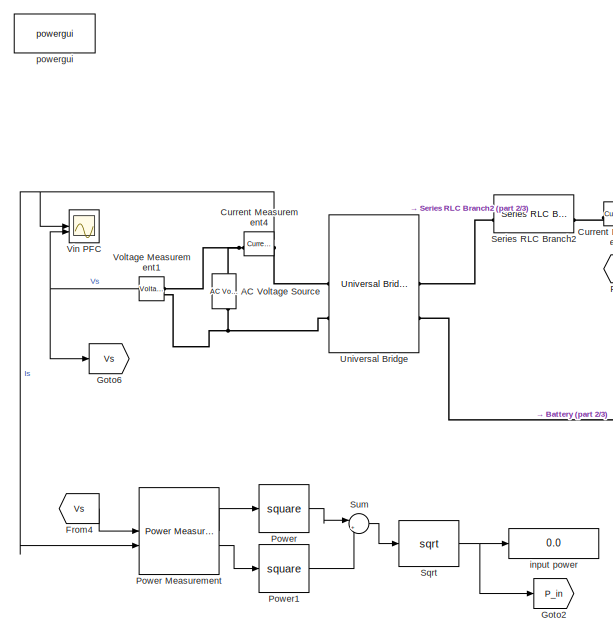
[diagram: root canvas - part 1/3, left side, full height]
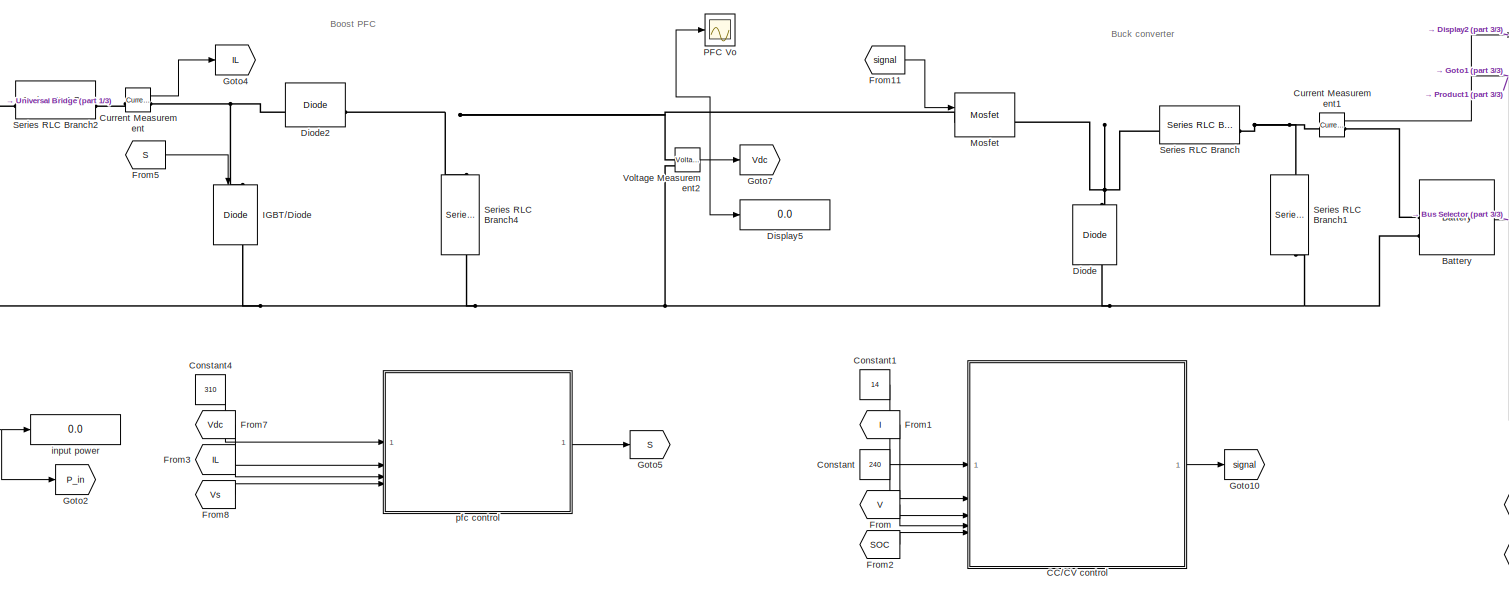
[diagram: root canvas - part 2/3, center side, full height]
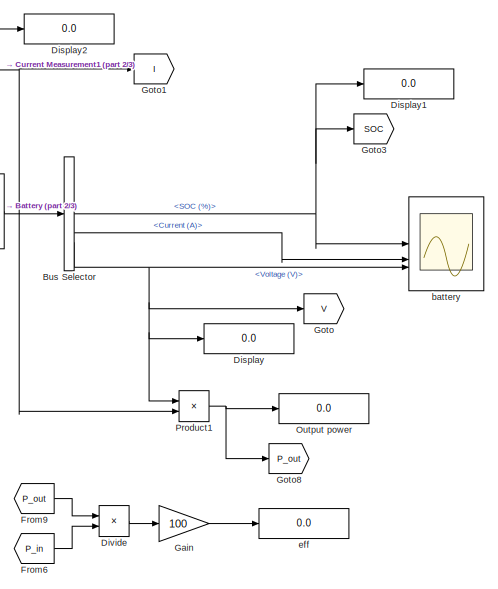
[diagram: root canvas - part 3/3, right side, full height]
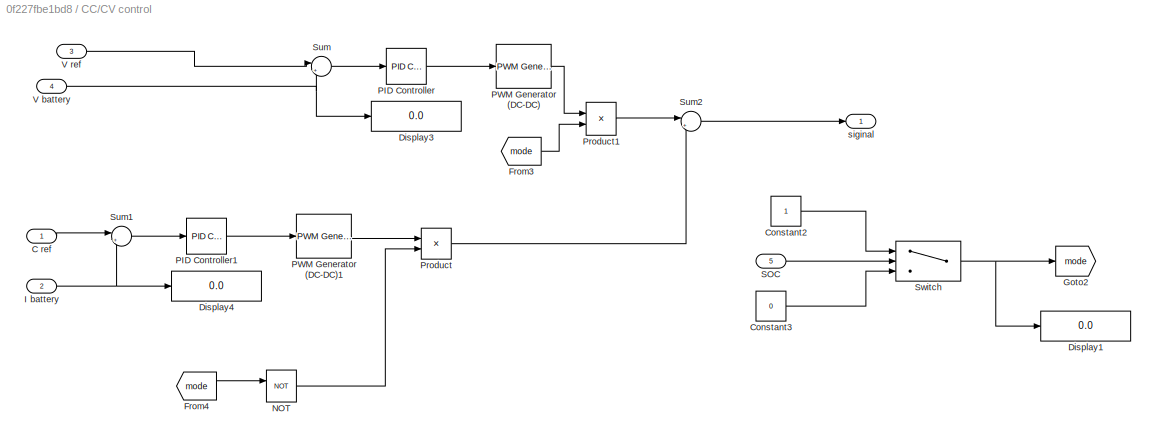
MODEL slx_0f227fbe1bd8
KIND model
CONFIG AbsTol = auto
CONFIG EnableMultiTasking = off
CONFIG FixedStep = auto
CONFIG MaxStep = 1e-5
CONFIG MinStep = auto
CONFIG RelTol = 1e-3
CONFIG SampleTimeConstraint = Unconstrained
CONFIG SolverName = ode23t
CONFIG StartTime = 0.0
CONFIG StopTime = 3
BLOCK [Reference] AC Voltage Source  REF=spsACVoltageSourceLib/AC Voltage Source
  LibrarySourceBlock = sps_lib/Sources/AC Voltage Source
  SourceBlock = spsACVoltageSourceLib/AC Voltage Source
  SourceType = AC Voltage Source
BLOCK [Reference] Battery  REF=spsBatteryLib/Battery
  LibrarySourceBlock = sps_lib/Sources/Battery
  SourceBlock = spsBatteryLib/Battery
  SourceType = Battery
BLOCK [BusSelector] Bus Selector
  OutputSignals = SOC (%),Current (A),Voltage (V)
BLOCK [SubSystem] CC//CV control
BLOCK [Inport] CC//CV control/C ref
BLOCK [Constant] CC//CV control/Constant2
BLOCK [Constant] CC//CV control/Constant3
  Value = 0
BLOCK [Display] CC//CV control/Display1
  Decimation = 1
BLOCK [Display] CC//CV control/Display3
  Decimation = 1
BLOCK [Display] CC//CV control/Display4
  Decimation = 1
BLOCK [From] CC//CV control/From3
  GotoTag = mode
BLOCK [From] CC//CV control/From4
  GotoTag = mode
BLOCK [Goto] CC//CV control/Goto2
  GotoTag = mode
BLOCK [Inport] CC//CV control/I battery
  Port = 2
BLOCK [Logic] CC//CV control/NOT
  AllPortsSameDT = off
  IconShape = distinctive
  Operator = NOT
  OutDataTypeStr = boolean
BLOCK [Reference] CC//CV control/PID Controller  REF=slpidlib/PID Controller
  LibrarySourceBlock = simulink/Continuous/PID Controller
  SourceBlock = slpidlib/PID Controller
  SourceType = PID 1dof
BLOCK [Reference] CC//CV control/PID Controller1  REF=slpidlib/PID Controller
  LibrarySourceBlock = simulink/Continuous/PID Controller
  SourceBlock = slpidlib/PID Controller
  SourceType = PID 1dof
BLOCK [Reference] CC//CV control/PWM Generator (DC-DC)  REF=spsPWMGeneratorDCDCLib/PWM Generator
(DC-DC)
  LibrarySourceBlock = sps_lib/Power Electronics/Power Electronics Control/PWM Generator\n(DC-DC)
  SourceBlock = spsPWMGeneratorDCDCLib/PWM Generator\n(DC-DC)
  SourceType = PWM Generator (DC-DC)
BLOCK [Reference] CC//CV control/PWM Generator (DC-DC)1  REF=spsPWMGeneratorDCDCLib/PWM Generator
(DC-DC)
  LibrarySourceBlock = sps_lib/Power Electronics/Power Electronics Control/PWM Generator\n(DC-DC)
  SourceBlock = spsPWMGeneratorDCDCLib/PWM Generator\n(DC-DC)
  SourceType = PWM Generator (DC-DC)
BLOCK [Product] CC//CV control/Product
BLOCK [Product] CC//CV control/Product1
BLOCK [Inport] CC//CV control/SOC
  Port = 5
BLOCK [Sum] CC//CV control/Sum
  Inputs = |+-
BLOCK [Sum] CC//CV control/Sum1
  Inputs = |+-
BLOCK [Sum] CC//CV control/Sum2
  Inputs = |++
BLOCK [Switch] CC//CV control/Switch
  Criteria = u2 > Threshold
  InputSameDT = off
  SaturateOnIntegerOverflow = off
  Threshold = 80
BLOCK [Inport] CC//CV control/V battery
  Port = 4
BLOCK [Inport] CC//CV control/V ref
  Port = 3
BLOCK [Outport] CC//CV control/siginal
BLOCK [Constant] Constant
  Value = 240
BLOCK [Constant] Constant1
  Value = 14
BLOCK [Constant] Constant4
  Value = 310
BLOCK [Reference] Current Measurement  REF=spsCurrentMeasurementLib/Current Measurement
  LibrarySourceBlock = sps_lib/Sensors and Measurements/Current Measurement
  SourceBlock = spsCurrentMeasurementLib/Current Measurement
  SourceType = Current Measurement
  UserDataPersistent = on
BLOCK [Reference] Current Measurement1  REF=spsCurrentMeasurementLib/Current Measurement
  LibrarySourceBlock = sps_lib/Sensors and Measurements/Current Measurement
  SourceBlock = spsCurrentMeasurementLib/Current Measurement
  SourceType = Current Measurement
  UserDataPersistent = on
BLOCK [Reference] Current Measurement4  REF=spsCurrentMeasurementLib/Current Measurement
  LibrarySourceBlock = sps_lib/Sensors and Measurements/Current Measurement
  SourceBlock = spsCurrentMeasurementLib/Current Measurement
  SourceType = Current Measurement
  UserDataPersistent = on
BLOCK [Reference] Diode  REF=spsDiodeLib/Diode
  LibrarySourceBlock = sps_lib/Power Electronics/Diode
  NameLocation = right
  SourceBlock = spsDiodeLib/Diode
  SourceType = Diode
BLOCK [Reference] Diode2  REF=spsDiodeLib/Diode
  LibrarySourceBlock = sps_lib/Power Electronics/Diode
  SourceBlock = spsDiodeLib/Diode
  SourceType = Diode
BLOCK [Display] Display
  Decimation = 1
BLOCK [Display] Display1
  Decimation = 1
BLOCK [Display] Display2
  Decimation = 1
BLOCK [Display] Display5
  Decimation = 1
BLOCK [Product] Divide
  Inputs = */
BLOCK [From] From
  GotoTag = V
BLOCK [From] From1
  GotoTag = I
BLOCK [From] From11
  GotoTag = signal
BLOCK [From] From2
  GotoTag = SOC
BLOCK [From] From3
  GotoTag = IL
BLOCK [From] From4
  GotoTag = Vs
BLOCK [From] From5
  GotoTag = S
BLOCK [From] From6
  GotoTag = P_in
BLOCK [From] From7
  GotoTag = Vdc
BLOCK [From] From8
  GotoTag = Vs
BLOCK [From] From9
  GotoTag = P_out
BLOCK [Gain] Gain
  Gain = 100
BLOCK [Goto] Goto
  GotoTag = V
BLOCK [Goto] Goto1
  GotoTag = I
BLOCK [Goto] Goto10
  GotoTag = signal
BLOCK [Goto] Goto2
  GotoTag = P_in
BLOCK [Goto] Goto3
  GotoTag = SOC
BLOCK [Goto] Goto4
  GotoTag = IL
BLOCK [Goto] Goto5
  GotoTag = S
BLOCK [Goto] Goto6
  GotoTag = Vs
BLOCK [Goto] Goto7
  GotoTag = Vdc
BLOCK [Goto] Goto8
  GotoTag = P_out
BLOCK [Reference] IGBT//Diode  REF=spsIGBTDiodeLib/IGBT//Diode
  LibrarySourceBlock = sps_lib/Power Electronics/IGBT//Diode
  NameLocation = left
  SourceBlock = spsIGBTDiodeLib/IGBT//Diode
  SourceType = IGBT/Diode
BLOCK [Reference] Mosfet  REF=spsMosfetLib/Mosfet
  LibrarySourceBlock = sps_lib/Power Electronics/Mosfet
  NameLocation = top
  SourceBlock = spsMosfetLib/Mosfet
  SourceType = Mosfet
BLOCK [Display] Output power
  Decimation = 1
BLOCK [Scope] PFC Vo
  Floating = off
  NumInputPorts = 1
  ScopeSpecificationString = Simulink.scopes.TimeScopeBlockCfg('CurrentConfiguration', extmgr.ConfigurationSet(extmgr.Configuration('Core','General UI',true,'FigureColor',[1 1 1]),extmgr.Configuration('Core','Source UI',true),extmgr.Configuration('Sources','WiredSimulink',true,'DataLoggingVariableName','ScopeData1'),extmgr.Configuration('Visuals','Time Domain',true,'SerializedDisplays',{struct('MinYLimReal','0','MaxYLimReal',...<+1560ch>
BLOCK [Math] Power
  Operator = square
BLOCK [Reference] Power Measurement  REF=eePowerMeasurement/Power
Measurement
  LibrarySourceBlock = ee_sl_lib/Measurements/Power\nMeasurement
  SourceBlock = eePowerMeasurement/Power\nMeasurement
  SourceType = Power Measurement
BLOCK [Math] Power1
  Operator = square
BLOCK [Product] Product1
BLOCK [Reference] Series RLC Branch  REF=spsSeriesRLCBranchLib/Series RLC Branch
  LibrarySourceBlock = sps_lib/Passives/Series RLC Branch
  NameLocation = top
  SourceBlock = spsSeriesRLCBranchLib/Series RLC Branch
  SourceType = Series RLC Branch
BLOCK [Reference] Series RLC Branch1  REF=spsSeriesRLCBranchLib/Series RLC Branch
  LibrarySourceBlock = sps_lib/Passives/Series RLC Branch
  NameLocation = left
  SourceBlock = spsSeriesRLCBranchLib/Series RLC Branch
  SourceType = Series RLC Branch
BLOCK [Reference] Series RLC Branch2  REF=spsSeriesRLCBranchLib/Series RLC Branch
  LibrarySourceBlock = sps_lib/Passives/Series RLC Branch
  SourceBlock = spsSeriesRLCBranchLib/Series RLC Branch
  SourceType = Series RLC Branch
BLOCK [Reference] Series RLC Branch4  REF=spsSeriesRLCBranchLib/Series RLC Branch
  LibrarySourceBlock = sps_lib/Passives/Series RLC Branch
  NameLocation = left
  SourceBlock = spsSeriesRLCBranchLib/Series RLC Branch
  SourceType = Series RLC Branch
BLOCK [Sqrt] Sqrt
BLOCK [Sum] Sum
  Inputs = |++
BLOCK [Reference] Universal Bridge  REF=spsUniversalBridgeLib/Universal Bridge
  LibrarySourceBlock = sps_lib/Power Electronics/Universal Bridge
  SourceBlock = spsUniversalBridgeLib/Universal Bridge
  SourceType = Universal Bridge
BLOCK [Scope] Vin PFC
  Floating = off
  NumInputPorts = 2
  ScopeSpecificationString = Simulink.scopes.TimeScopeBlockCfg('CurrentConfiguration', extmgr.ConfigurationSet(extmgr.Configuration('Core','General UI',true,'FigureColor',[1 1 1]),extmgr.Configuration('Core','Source UI',true),extmgr.Configuration('Sources','WiredSimulink',true,'DataLoggingVariableName','ScopeData2'),extmgr.Configuration('Visuals','Time Domain',true,'SerializedDisplays',{struct('MinYLimReal','-388.90873','MaxY...<+1733ch>
BLOCK [Reference] Voltage Measurement1  REF=spsVoltageMeasurementLib/Voltage Measurement
  LibrarySourceBlock = sps_lib/Sensors and Measurements/Voltage Measurement
  SourceBlock = spsVoltageMeasurementLib/Voltage Measurement
  SourceType = Voltage Measurement
  UserDataPersistent = on
BLOCK [Reference] Voltage Measurement2  REF=spsVoltageMeasurementLib/Voltage Measurement
  LibrarySourceBlock = sps_lib/Sensors and Measurements/Voltage Measurement
  SourceBlock = spsVoltageMeasurementLib/Voltage Measurement
  SourceType = Voltage Measurement
  UserDataPersistent = on
BLOCK [Scope] battery
  Floating = off
  NumInputPorts = 3
  ScopeSpecificationString = Simulink.scopes.TimeScopeBlockCfg('CurrentConfiguration', extmgr.ConfigurationSet(extmgr.Configuration('Core','General UI',true,'FigureColor',[1 1 1]),extmgr.Configuration('Core','Source UI',true),extmgr.Configuration('Sources','WiredSimulink',true,'DataLoggingVariableName','ScopeData3'),extmgr.Configuration('Visuals','Time Domain',true,'SerializedDisplays',{struct('MinYLimReal','79.98857','MaxYLi...<+3242ch>
BLOCK [Display] eff
  Decimation = 1
BLOCK [Display] input power
  Decimation = 1
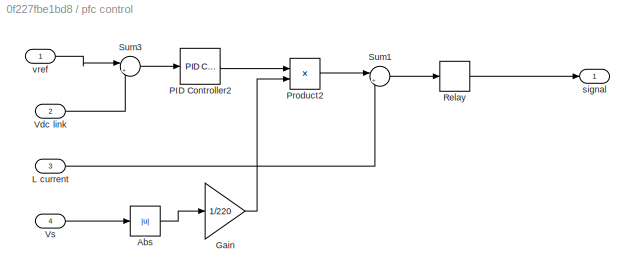
BLOCK [SubSystem] pfc control
BLOCK [Abs] pfc control/Abs
  SaturateOnIntegerOverflow = off
BLOCK [Gain] pfc control/Gain
  Gain = 1/220
BLOCK [Inport] pfc control/L current
  Port = 3
BLOCK [Reference] pfc control/PID Controller2  REF=slpidlib/PID Controller
  LibrarySourceBlock = simulink/Continuous/PID Controller
  SourceBlock = slpidlib/PID Controller
  SourceType = PID 1dof
BLOCK [Product] pfc control/Product2
BLOCK [Relay] pfc control/Relay
  OffSwitchValue = -0.001
  OnSwitchValue = 0.001
BLOCK [Sum] pfc control/Sum1
  Inputs = |+-
BLOCK [Sum] pfc control/Sum3
  Inputs = |+-
BLOCK [Inport] pfc control/Vdc link
  Port = 2
BLOCK [Inport] pfc control/Vs
  Port = 4
BLOCK [Outport] pfc control/signal
BLOCK [Inport] pfc control/vref
BLOCK [Reference] powergui  REF=spspowerguiLib/powergui
  Priority = 1
  SourceBlock = spspowerguiLib/powergui
  SourceType = PSB option menu block
ANNOTATION (root): Boost PFC
ANNOTATION (root): Buck converter
LINE Battery:1 -> Bus Selector:1
NET Bus Selector:1 -> Display1:1, Goto3:1, battery:1
LINE Bus Selector:2 -> battery:2
NET Bus Selector:3 -> Display:1, Goto:1, Product1:1, battery:3
LINE CC//CV control/C ref:1 -> CC//CV control/Sum1:1
LINE CC//CV control/Constant2:1 -> CC//CV control/Switch:1
LINE CC//CV control/Constant3:1 -> CC//CV control/Switch:3
LINE CC//CV control/From3:1 -> CC//CV control/Product1:2
LINE CC//CV control/From4:1 -> CC//CV control/NOT:1
NET CC//CV control/I battery:1 -> CC//CV control/Display4:1, CC//CV control/Sum1:2
LINE CC//CV control/NOT:1 -> CC//CV control/Product:2
LINE CC//CV control/PID Controller1:1 -> CC//CV control/PWM Generator (DC-DC)1:1
LINE CC//CV control/PID Controller:1 -> CC//CV control/PWM Generator (DC-DC):1
LINE CC//CV control/PWM Generator (DC-DC)1:1 -> CC//CV control/Product:1
LINE CC//CV control/PWM Generator (DC-DC):1 -> CC//CV control/Product1:1
LINE CC//CV control/Product1:1 -> CC//CV control/Sum2:1
LINE CC//CV control/Product:1 -> CC//CV control/Sum2:2
LINE CC//CV control/SOC:1 -> CC//CV control/Switch:2
LINE CC//CV control/Sum1:1 -> CC//CV control/PID Controller1:1
LINE CC//CV control/Sum2:1 -> CC//CV control/siginal:1
LINE CC//CV control/Sum:1 -> CC//CV control/PID Controller:1
NET CC//CV control/Switch:1 -> CC//CV control/Display1:1, CC//CV control/Goto2:1
NET CC//CV control/V battery:1 -> CC//CV control/Display3:1, CC//CV control/Sum:2
LINE CC//CV control/V ref:1 -> CC//CV control/Sum:1
LINE CC//CV control:1 -> Goto10:1
LINE Constant1:1 -> CC//CV control:1
LINE Constant4:1 -> pfc control:1
LINE Constant:1 -> CC//CV control:3
NET Current Measurement1:1 -> Display2:1, Goto1:1, Product1:2
NET Current Measurement4:1 -> Power Measurement:2, Vin PFC:1
LINE Current Measurement:1 -> Goto4:1
LINE Divide:1 -> Gain:1
LINE From11:1 -> Mosfet:1
LINE From1:1 -> CC//CV control:2
LINE From2:1 -> CC//CV control:5
LINE From3:1 -> pfc control:3
LINE From4:1 -> Power Measurement:1
LINE From5:1 -> IGBT//Diode:1
LINE From6:1 -> Divide:2
LINE From7:1 -> pfc control:2
LINE From8:1 -> pfc control:4
LINE From9:1 -> Divide:1
LINE From:1 -> CC//CV control:4
LINE Gain:1 -> eff:1
LINE Power Measurement:1 -> Power:1
LINE Power Measurement:2 -> Power1:1
LINE Power1:1 -> Sum:2
LINE Power:1 -> Sum:1
NET Product1:1 -> Goto8:1, Output power:1
NET Sqrt:1 -> Goto2:1, input power:1
LINE Sum:1 -> Sqrt:1
NET Voltage Measurement1:1 -> Goto6:1, Vin PFC:2
NET Voltage Measurement2:1 -> Display5:1, Goto7:1, PFC Vo:1
LINE pfc control/Abs:1 -> pfc control/Gain:1
LINE pfc control/Gain:1 -> pfc control/Product2:2
LINE pfc control/L current:1 -> pfc control/Sum1:2
LINE pfc control/PID Controller2:1 -> pfc control/Product2:1
LINE pfc control/Product2:1 -> pfc control/Sum1:1
LINE pfc control/Relay:1 -> pfc control/signal:1
LINE pfc control/Sum1:1 -> pfc control/Relay:1
LINE pfc control/Sum3:1 -> pfc control/PID Controller2:1
LINE pfc control/Vdc link:1 -> pfc control/Sum3:2
LINE pfc control/Vs:1 -> pfc control/Abs:1
LINE pfc control/vref:1 -> pfc control/Sum3:1
LINE pfc control:1 -> Goto5:1
PNET net1: AC Voltage Source:LConn1 -- Universal Bridge:LConn2 -- Voltage Measurement1:LConn2
PNET net2: AC Voltage Source:RConn1 -- Current Measurement4:LConn1 -- Voltage Measurement1:LConn1
PLINE Battery:LConn1 -- Current Measurement1:RConn1
PNET net3: Battery:LConn2 -- Diode:LConn1 -- IGBT//Diode:RConn1 -- Series RLC Branch1:RConn1 -- Series RLC Branch4:RConn1 -- Universal Bridge:RConn2 -- Voltage Measurement2:LConn2
PNET net4: Current Measurement1:LConn1 -- Series RLC Branch1:LConn1 -- Series RLC Branch:LConn1
PLINE Current Measurement4:RConn1 -- Universal Bridge:LConn1
PLINE Current Measurement:LConn1 -- Series RLC Branch2:RConn1
PNET net5: Current Measurement:RConn1 -- Diode2:LConn1 -- IGBT//Diode:LConn1
PNET net6: Diode2:RConn1 -- Mosfet:LConn1 -- Series RLC Branch4:LConn1 -- Voltage Measurement2:LConn1
PNET net7: Diode:RConn1 -- Mosfet:RConn1 -- Series RLC Branch:RConn1
PLINE Series RLC Branch2:LConn1 -- Universal Bridge:RConn1
note: NET lines group one-source signal fan-out (src -> all destinations, sorted); 1:1 wires keep LINE; PNET lines group multi-terminal physical nets as a canonical sorted terminal list (undirected conserving connections); 2-terminal nets keep the pairwise PLINE form
